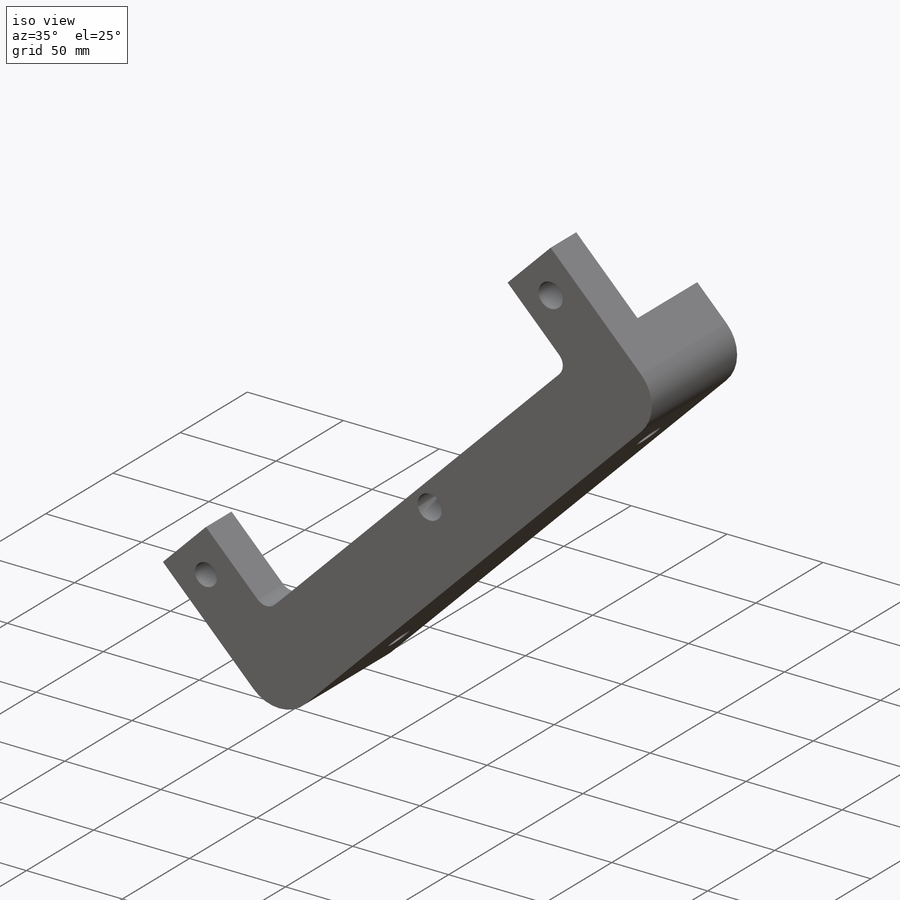
[diagram: iso view]
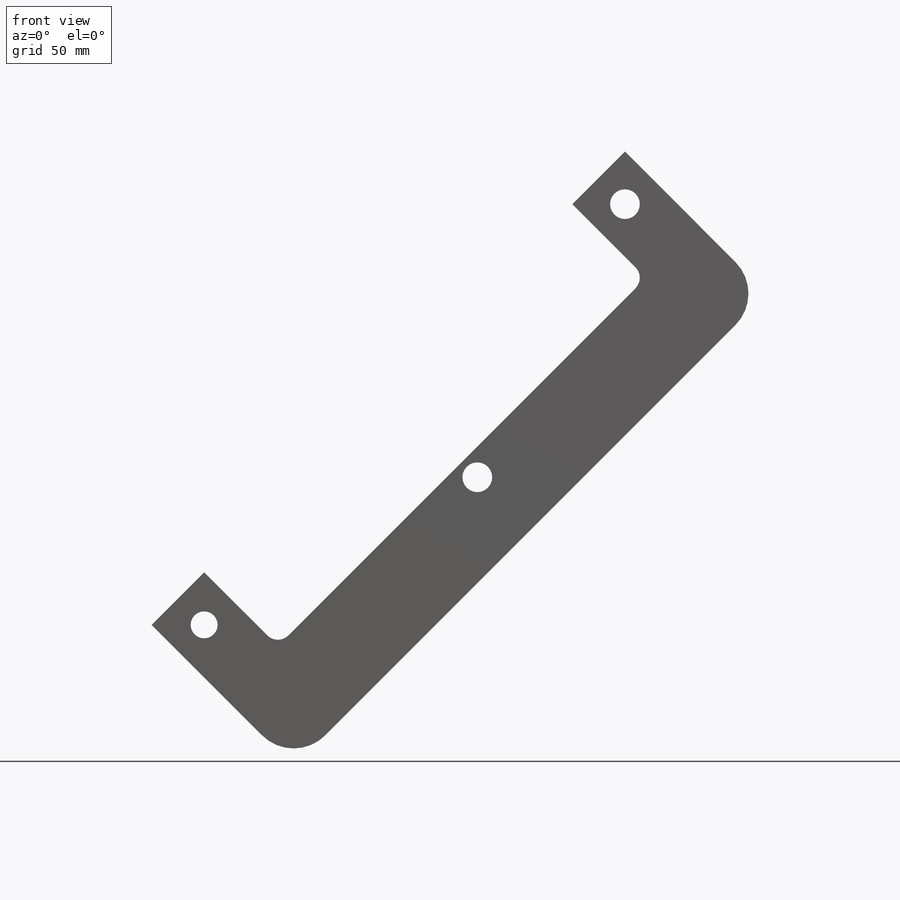
[diagram: front view]
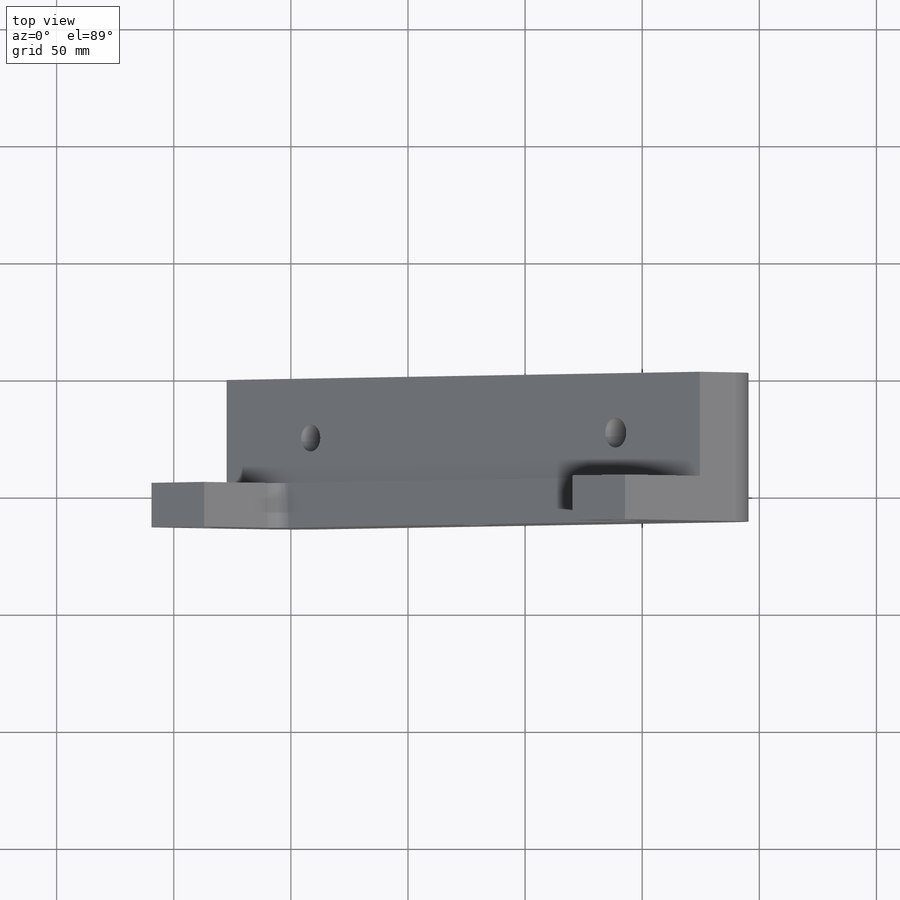
[diagram: top view]
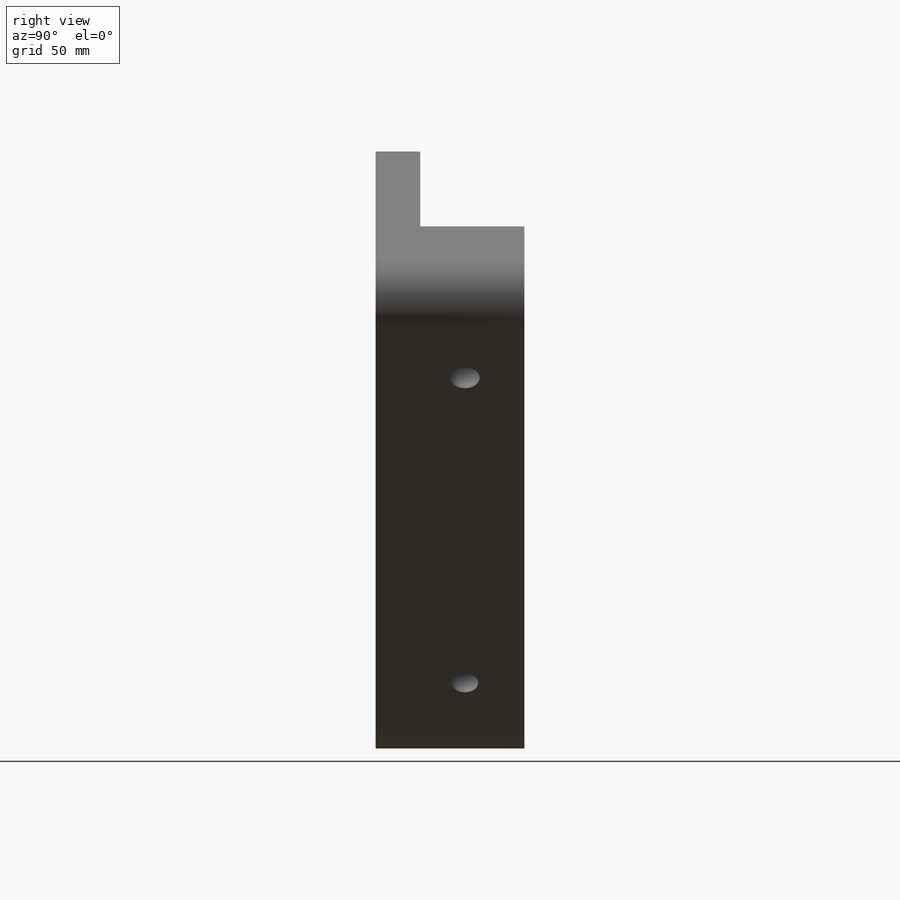
[diagram: right view]
SOLIDWORKS PART (.sldprt)
format: sldprt  version: not decoded by parser v0  size: 311,808 bytes
history: native  units: mm
features: sketch x10, hole x4, thread x2, material x1, extrude x1, cut_extrude x1 (+14 scaffold rows collapsed)
feature tree (33):
  scaffold x14  (default folders/planes/origin — collapsed)
  material  "AISI 1018 Steel, Cold Rolled"
  sketch  "Sketch1"  dims[c1.D4=12.7mm c1.D5=25.4mm c1.D3=19.05mm c1.D2=6.35mm c2.D4=6.35mm c2.D7=6.35mm c2.D6=6.35mm c2.D5=41.275mm c3.D5=~0.013324deg c4.D5=285.75mm c4.D8=~38.165719mm c4.D7=142.875mm c5.D8=31.75mm c5.D1=31.75mm c5.D2=25.4mm c5.D3=38.1mm c5.D4=3.175mm c5.D5=3.9878mm c6.D4=44.45mm c6.D6=38.1mm c6.D8=6.35mm]
  extrude  "Base-Extrude"  Depth=63.5mm
  sketch  "Sketch2"  dims[c1.D2=~40.484647mm c1.D1=44.45mm c2.D2=0.7874mm]
  cut_extrude  "Cut-Extrude1"  [1 undecoded]
  hole  "1/2-20 Tapped Hole4"  Diameter=11.50874mm Depth=63.5mm
  sketch  "Sketch4"  dims[c1.D1=12.7mm c1.D2=12.7mm c2.D1=15.875mm c2.D2=15.875mm]
  sketch  "Sketch3"  dims[hole-wizard template sketch: 59 standard entries collapsed; hole parameters kept: c18.Thru Tap Drill Dia.=~11.50874mm c18.Thru Tap Drill Depth=63.5mm]
  thread  "Cosmetic Thread2"  Diameter=19.05mm  [1 undecoded]
  hole  "1/2-20 Tapped Hole3"  Diameter=11.50874mm Depth=63.5mm
  sketch  "Sketch6"  dims[D1=15.875mm D2=15.875mm]
  sketch  "Sketch5"  dims[hole-wizard template sketch: 41 standard entries collapsed; hole parameters kept: c12.Thru Tap Drill Dia.=~11.50874mm c12.Thru Tap Drill Depth=63.5mm c12.Thread Dia.=12.7mm c12.Thread Depth=25.4mm]
  hole  "1/2-20 Tapped Hole1"  Diameter=12.7mm Depth=228.645033mm
  sketch  "Sketch8"  dims[D1=25.4mm D2=50.8mm]
  sketch  "Sketch7"  dims[hole-wizard template sketch: 60 standard entries collapsed; hole parameters kept: c18.Thru Tap Drill Depth=~228.645033mm]
  hole  "1/2-20 Tapped Hole2"  Diameter=11.50874mm Depth=228.645033mm
  sketch  "Sketch10"  dims[D1=25.4mm D2=50.8mm]
  sketch  "Sketch9"  dims[hole-wizard template sketch: 59 standard entries collapsed; hole parameters kept: c18.Thru Tap Drill Dia.=~11.50874mm c18.Thru Tap Drill Depth=~228.645033mm]
  thread  "Cosmetic Thread1"  Diameter=12.7mm  [1 undecoded]
decode coverage: 17 of 18 modeling features carry decoded parameters
note: ~ marks probable driven/reference dimensions
note: 3 parameter values undecoded
summary: Diameter pulled from absorbed wizard sketch
note: suppression state not decoded; provenance and decode notes live in map.json
